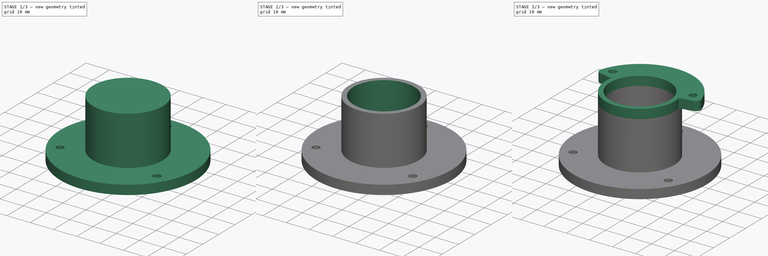
[diagram: build sequence overview — one tinted view per stage of 3, left to right]
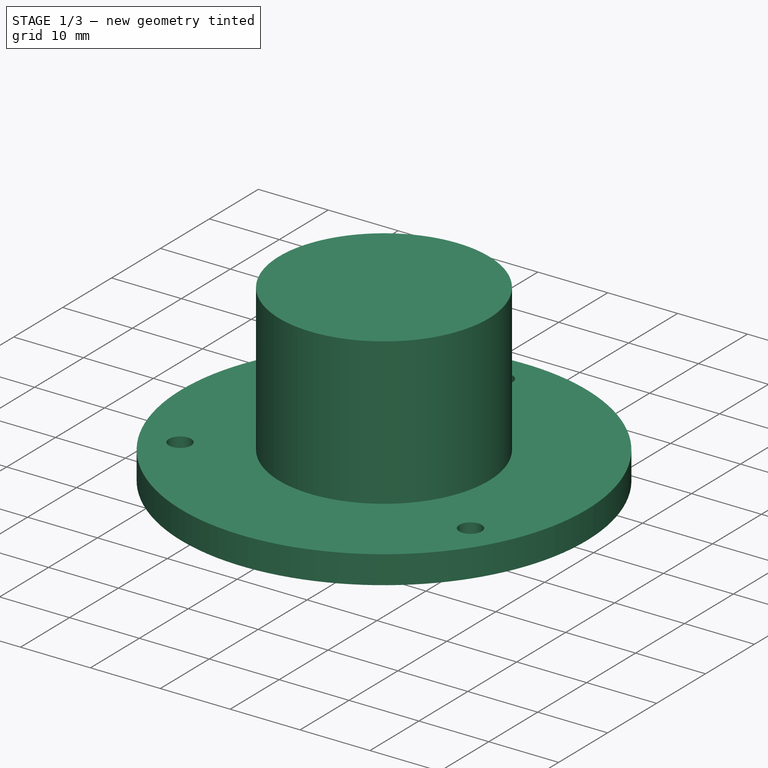
[diagram: stage 1 of 3 — iso view after this stage's code; geometry added in this stage tinted green]
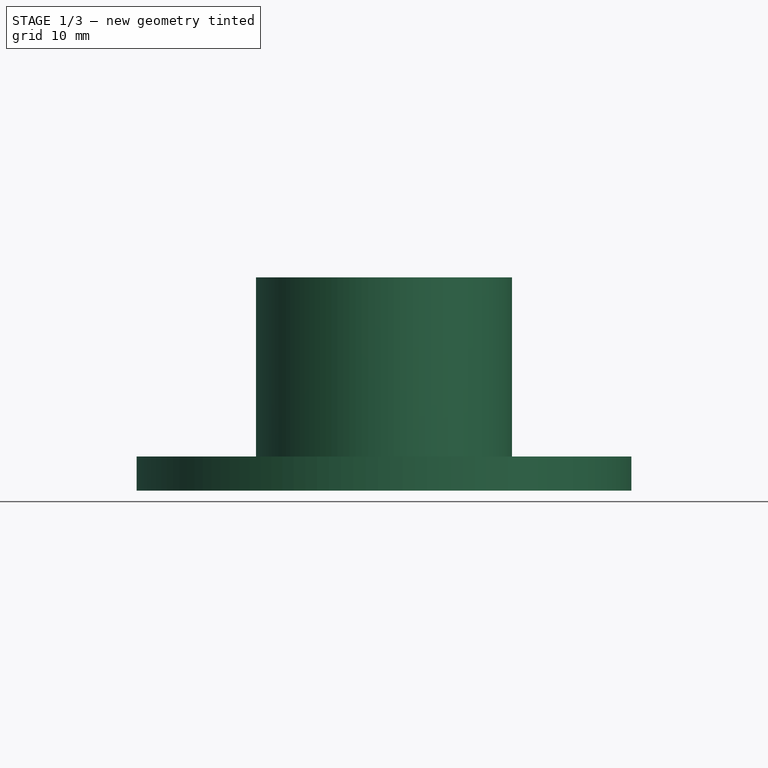
[diagram: stage 1 of 3 — front view after this stage's code; geometry added in this stage tinted green]
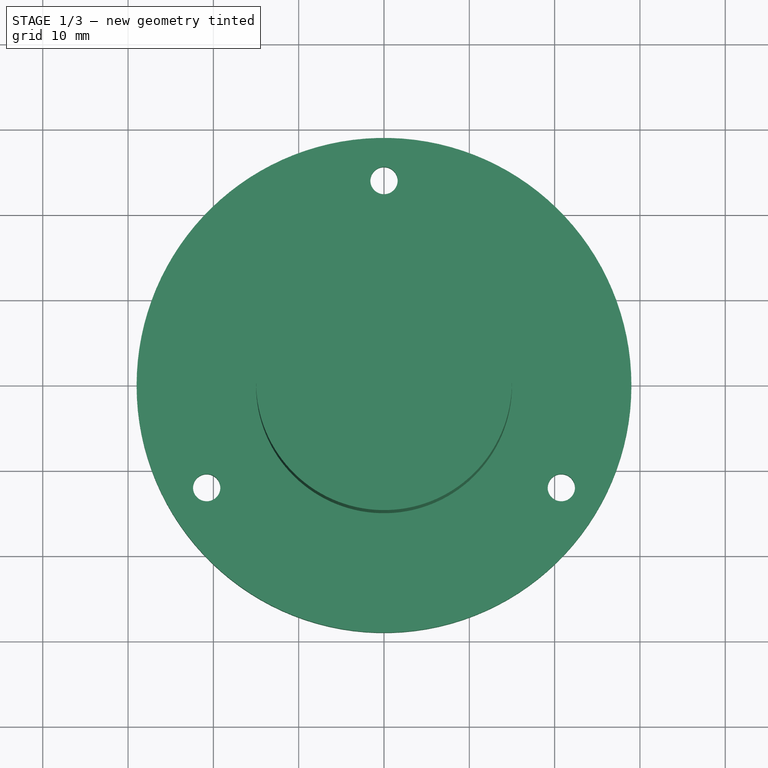
[diagram: stage 1 of 3 — top view after this stage's code; geometry added in this stage tinted green]
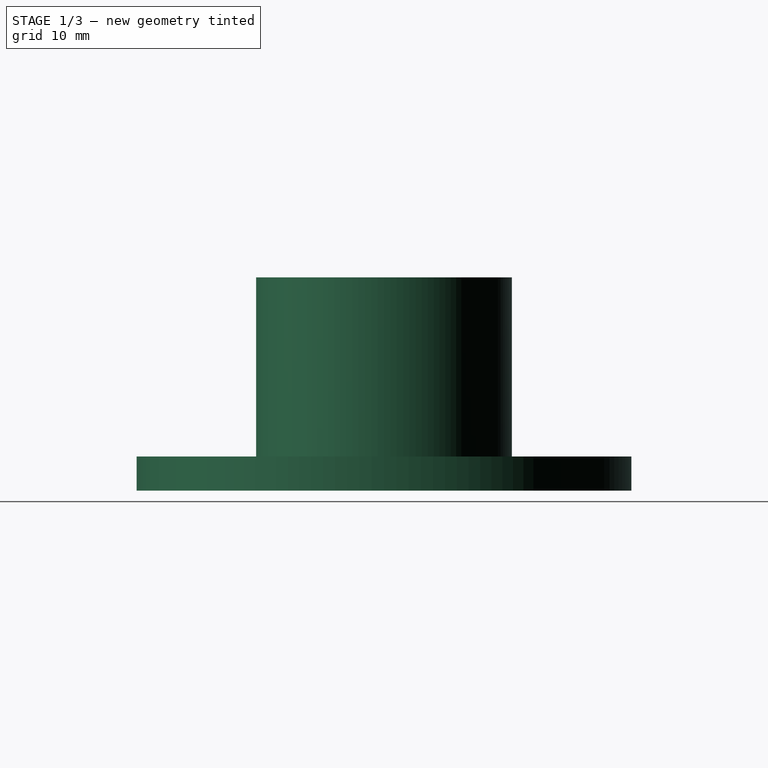
[diagram: stage 1 of 3 — right view after this stage's code; geometry added in this stage tinted green]
FCSTD DOCUMENT  (FreeCAD 0.18.3R)
Label: Body
License: All rights reserved
LicenseURL: http://en.wikipedia.org/wiki/All_rights_reserved
objects: Sketcher::SketchObject×4, PartDesign::Pad×3, PartDesign::Pocket×1, PartDesign::Fillet×1, PartDesign::Body×1
note: 14 computed .brp shape members not serialized (recipe doc carries the construction recipe); baked Part::Feature solids carry a one-line shape summary decoded from their .brp

FEATURE [Sketcher::SketchObject] Sketch
  MapMode = 5
  Support = -> [XY_Plane]
  sketch-geometry (7):
    g0: Circle CenterX=0 CenterY=0 CenterZ=0 NormalX=0 NormalY=0 NormalZ=1 AngleXU=0 Radius=29
    g1: Circle CenterX=1.5e-15 CenterY=24 CenterZ=0 NormalX=0 NormalY=0 NormalZ=1 AngleXU=0 Radius=1.6
    g2: Circle CenterX=20.7846 CenterY=-12 CenterZ=0 NormalX=0 NormalY=0 NormalZ=1 AngleXU=0 Radius=1.6
    g3: Circle CenterX=-20.7846 CenterY=-12 CenterZ=0 NormalX=0 NormalY=0 NormalZ=1 AngleXU=0 Radius=1.6
    g4: LineSegment [constr] StartX=-20.7846 StartY=-12 StartZ=0 EndX=0 EndY=0 EndZ=0
    g5: LineSegment [constr] StartX=1.5e-15 StartY=24 StartZ=0 EndX=0 EndY=0 EndZ=0
    g6: LineSegment [constr] StartX=20.7846 StartY=-12 StartZ=0 EndX=0 EndY=0 EndZ=0
  constraints (17):
    c: Coincident(g0,g-1)
    c: Coincident(g4,g3)
    c: Coincident(g4,g0)
    c: Coincident(g5,g1)
    c: Coincident(g5,g0)
    c: Coincident(g6,g2)
    c: Coincident(g6,g0)
    c: Radius(g2) = 1.6
    c: Radius(g1) = 1.6
    c: Radius(g3) = 1.6
    c: Distance(g6) = 24
    c: Distance(g5) = 24
    c: Distance(g4) = 24
    c: Angle(g-2,g5) = 0
    c: Angle(g-2,g4) = 2.0944
    c: Angle(g6,g-2) = 2.0944
    c: Radius(g0) = 29
FEATURE [PartDesign::Pad] Pad
  Length = 4
  Length2 = 100
  Profile = -> Sketch
  Type = 0
FEATURE [Sketcher::SketchObject] Sketch001
  MapMode = 5
  Placement = pos=(0,0,4) rot=(0,0,1;0rad)
  Support = -> [Pad]
  sketch-geometry (1):
    g0: Circle CenterX=0 CenterY=0 CenterZ=0 NormalX=0 NormalY=0 NormalZ=1 AngleXU=0 Radius=15
  constraints (2):
    c: Coincident(g0,g-1)
    c: Radius(g0) = 15
FEATURE [PartDesign::Pad] Pad001
  BaseFeature = -> Pad
  Length = 21
  Length2 = 100
  Profile = -> Sketch001
  Type = 0
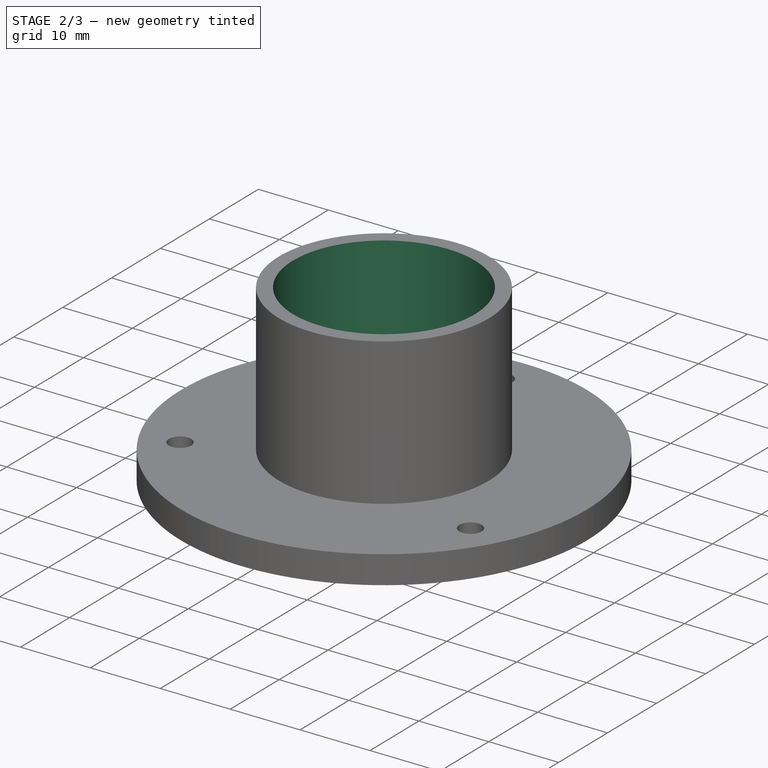
[diagram: stage 2 of 3 — iso view after this stage's code; geometry added in this stage tinted green]
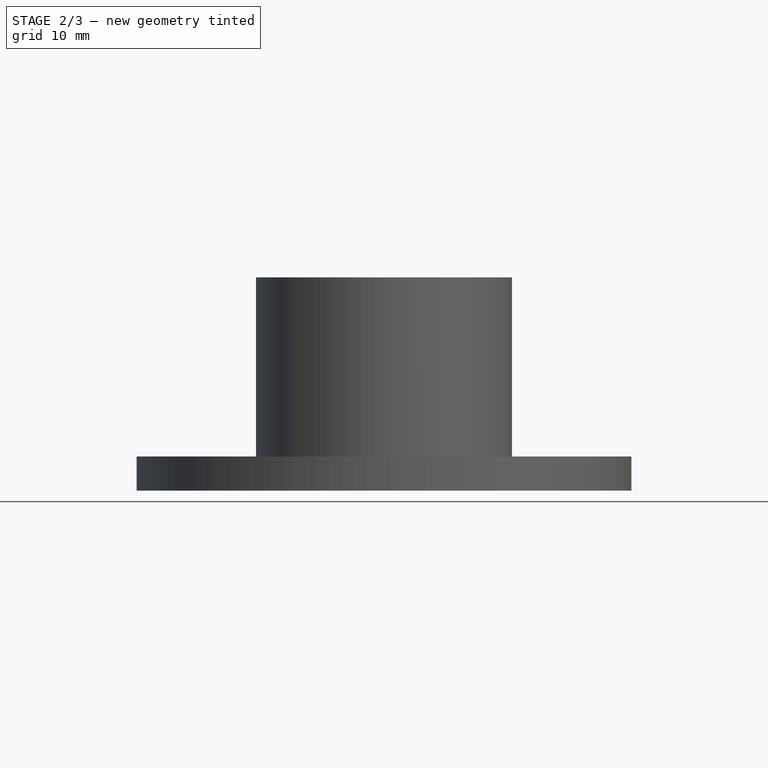
[diagram: stage 2 of 3 — front view after this stage's code; geometry added in this stage tinted green]
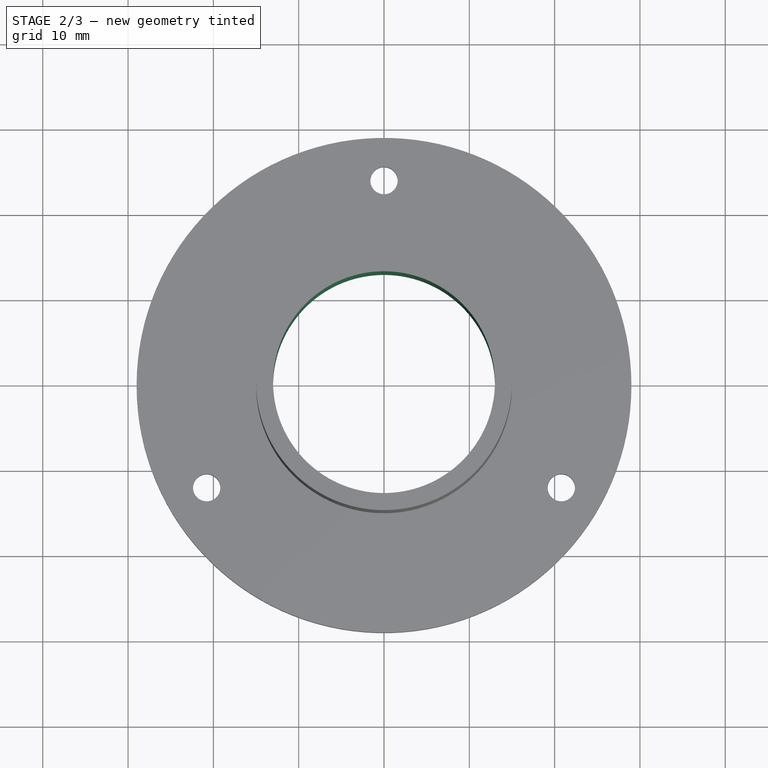
[diagram: stage 2 of 3 — top view after this stage's code; geometry added in this stage tinted green]
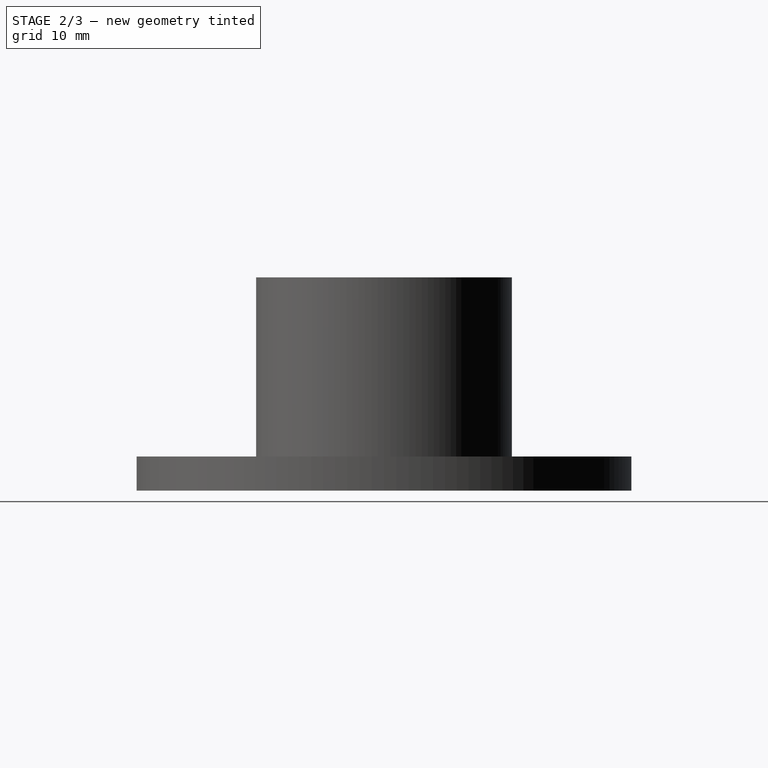
[diagram: stage 2 of 3 — right view after this stage's code; geometry added in this stage tinted green]
FEATURE [Sketcher::SketchObject] Sketch002
  MapMode = 5
  Placement = pos=(0,0,25) rot=(0,0,1;0rad)
  Support = -> [Pad001]
  sketch-geometry (1):
    g0: Circle CenterX=0 CenterY=0 CenterZ=0 NormalX=0 NormalY=0 NormalZ=1 AngleXU=0 Radius=13
  constraints (2):
    c: Coincident(g0,g-1)
    c: Radius(g0) = 13
FEATURE [PartDesign::Pocket] Pocket
  BaseFeature = -> Pad001
  Length = 40
  Length2 = 100
  Profile = -> Sketch002
  Type = 0
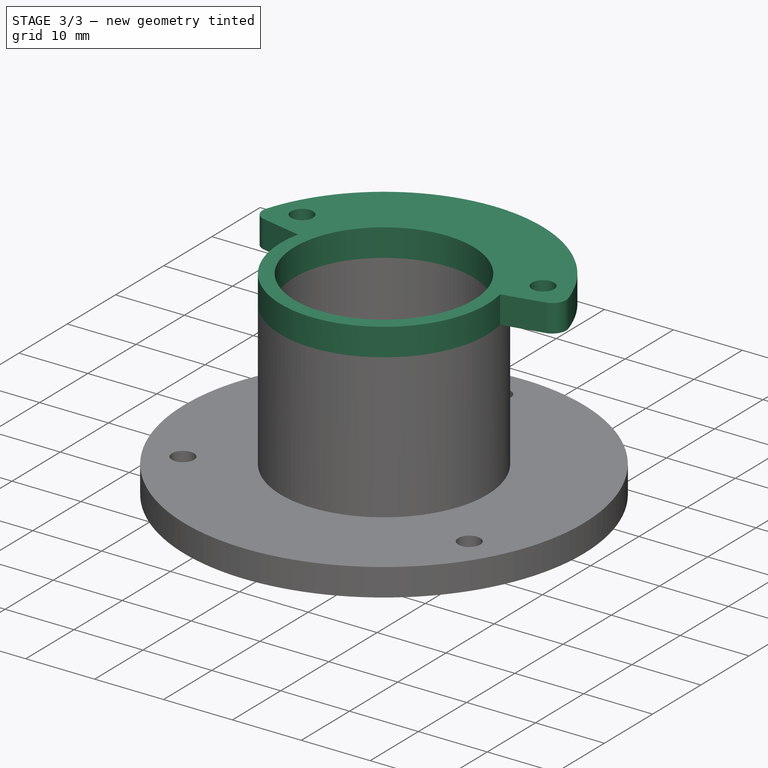
[diagram: stage 3 of 3 — iso view after this stage's code; geometry added in this stage tinted green]
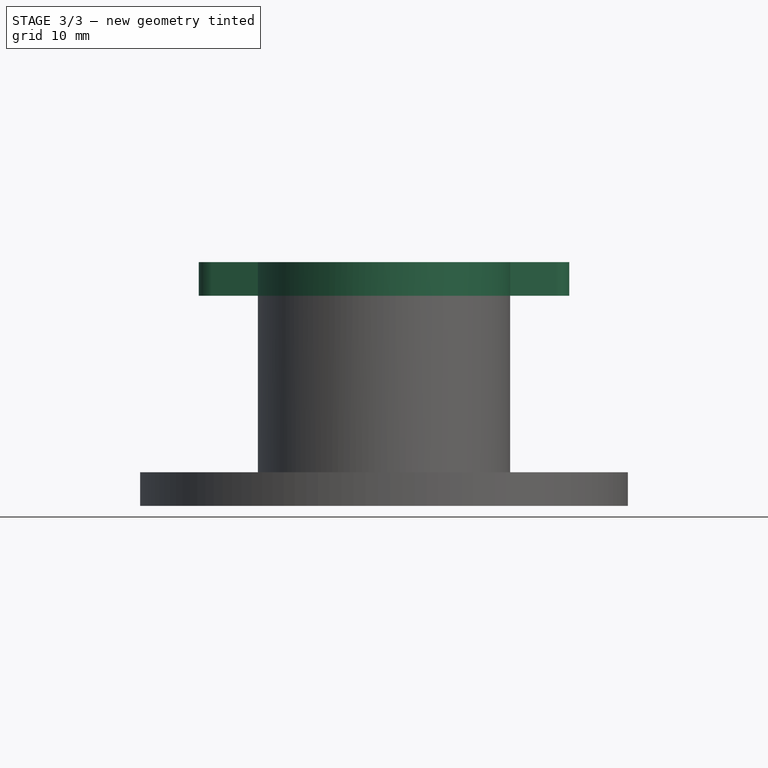
[diagram: stage 3 of 3 — front view after this stage's code; geometry added in this stage tinted green]
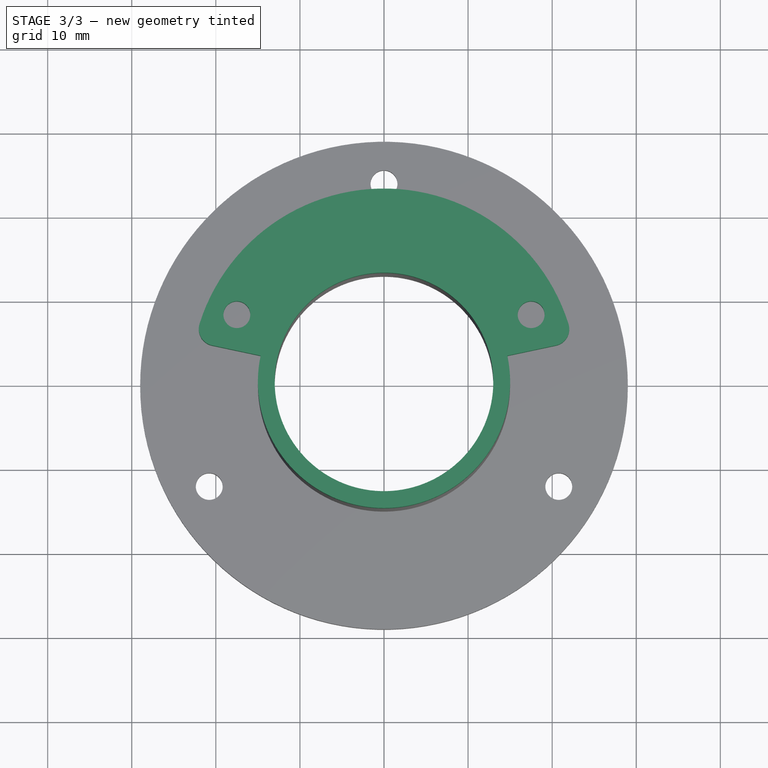
[diagram: stage 3 of 3 — top view after this stage's code; geometry added in this stage tinted green]
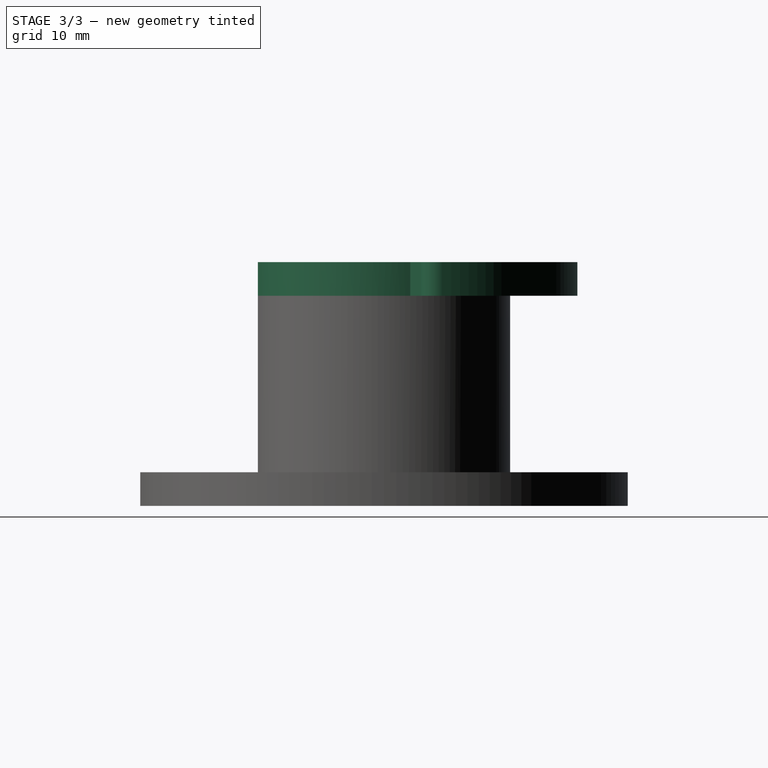
[diagram: stage 3 of 3 — right view after this stage's code; geometry added in this stage tinted green]
FEATURE [Sketcher::SketchObject] Sketch003
  ExternalGeometry = -> [Pocket]
  MapMode = 5
  Placement = pos=(0,0,25) rot=(0,0,1;0rad)
  Support = -> [Pocket]
  sketch-geometry (13):
    g0: Circle CenterX=0 CenterY=0 CenterZ=0 NormalX=0 NormalY=0 NormalZ=1 AngleXU=0 Radius=13
    g1: Circle [constr] CenterX=0 CenterY=0 CenterZ=0 NormalX=0 NormalY=0 NormalZ=1 AngleXU=0 Radius=4.90616
    g2: LineSegment [constr] StartX=0 StartY=0 StartZ=0 EndX=0 EndY=30.5253 EndZ=0
    g3: GeomPoint X=0 Y=8 Z=0
    g4: Circle [constr] CenterX=0 CenterY=8 CenterZ=0 NormalX=0 NormalY=0 NormalZ=1 AngleXU=0 Radius=14
    g5: Circle CenterX=-17.5 CenterY=8 CenterZ=0 NormalX=0 NormalY=0 NormalZ=1 AngleXU=0 Radius=1.6
    g6: Circle CenterX=17.5 CenterY=8 CenterZ=0 NormalX=0 NormalY=0 NormalZ=1 AngleXU=0 Radius=1.6
    g7: LineSegment [constr] StartX=0 StartY=0 StartZ=0 EndX=-14.6722 EndY=3.11868 EndZ=0
    g8: LineSegment [constr] StartX=0 StartY=0 StartZ=0 EndX=14.6722 EndY=3.11868 EndZ=0
    g9: ArcOfCircle CenterX=0 CenterY=0 CenterZ=0 NormalX=0 NormalY=0 NormalZ=1 AngleXU=0 Radius=15 StartAngle=2.93215 EndAngle=6.49262
    g10: LineSegment StartX=-14.6722 StartY=3.11868 StartZ=0 EndX=-22.4974 EndY=4.78197 EndZ=0
    g11: LineSegment StartX=14.6722 StartY=3.11868 StartZ=0 EndX=22.4974 EndY=4.78197 EndZ=0
    g12: ArcOfCircle CenterX=0 CenterY=0 CenterZ=0 NormalX=0 NormalY=0 NormalZ=1 AngleXU=0 Radius=23 StartAngle=0.20944 EndAngle=2.93215
  constraints (31):
    c: Coincident(g0,g-1)
    c: Equal(g0,g-3)
    c: Coincident(g1,g0)
    c: Vertical(g2)
    c: PointOnObject(g3,g2)
    c: Coincident(g0,g2)
    c: Distance(g3,g0) = 8
    c: Coincident(g4,g3)
    c: Radius(g4) = 14
    c: DistanceY(g3,g5) = 0
    c: DistanceY(g3,g6) = 0
    c: Distance(g3,g6) = 17.5
    c: Distance(g5,g3) = 17.5
    c: Radius(g5) = 1.6
    c: Radius(g6) = 1.6
    c: Coincident(g7,g0)
    c: PointOnObject(g7,g-4)
    c: Coincident(g8,g0)
    c: Angle(g-1,g7) = 2.93215
    c: Angle(g-1,g8) = 0.20944
    c: Coincident(g9,g0)
    c: Coincident(g9,g8)
    c: Coincident(g9,g7)
    c: Coincident(g10,g9)
    c: Coincident(g11,g9)
    c: Parallel(g10,g7)
    c: Parallel(g8,g11)
    c: Distance(g10) = 8
    c: Coincident(g12,g0)
    c: Coincident(g12,g10)
    c: Coincident(g12,g11)
FEATURE [PartDesign::Pad] Pad002
  BaseFeature = -> Pocket
  Length = 4
  Length2 = 100
  Profile = -> Sketch003
  Type = 0
FEATURE [PartDesign::Fillet] Fillet
  Base = -> Pad002 [Edge37,Edge36]
  BaseFeature = -> Pad002
  Radius = 2
FEATURE [PartDesign::Body] Body
  Group = -> [Sketch,Pad,Sketch001,Pad001,Sketch002,Pocket,Sketch003,Pad002,Fillet]
  Origin = -> Origin
  Tip = -> Fillet
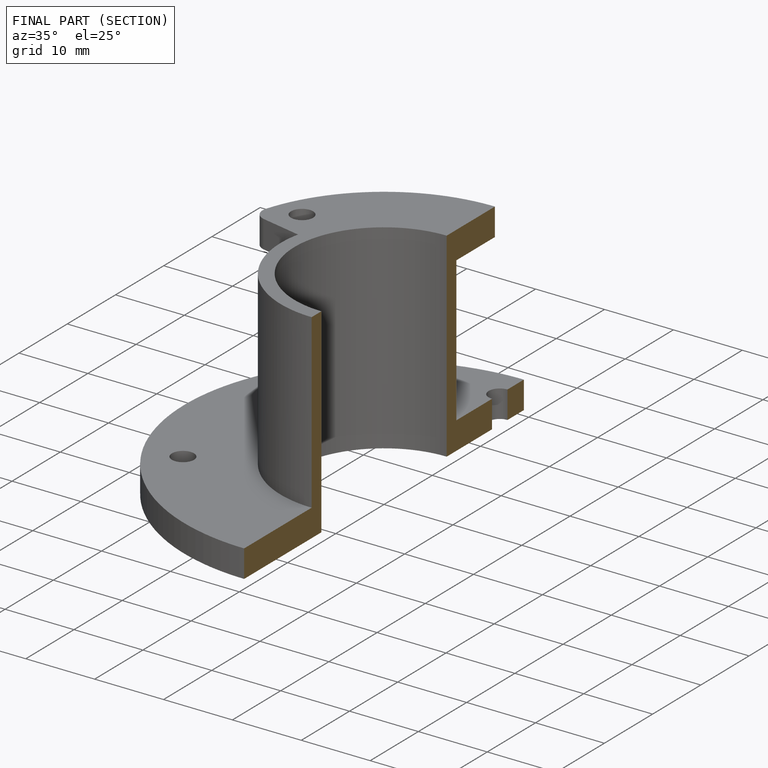
[diagram: finished part — half-section view (interior)]
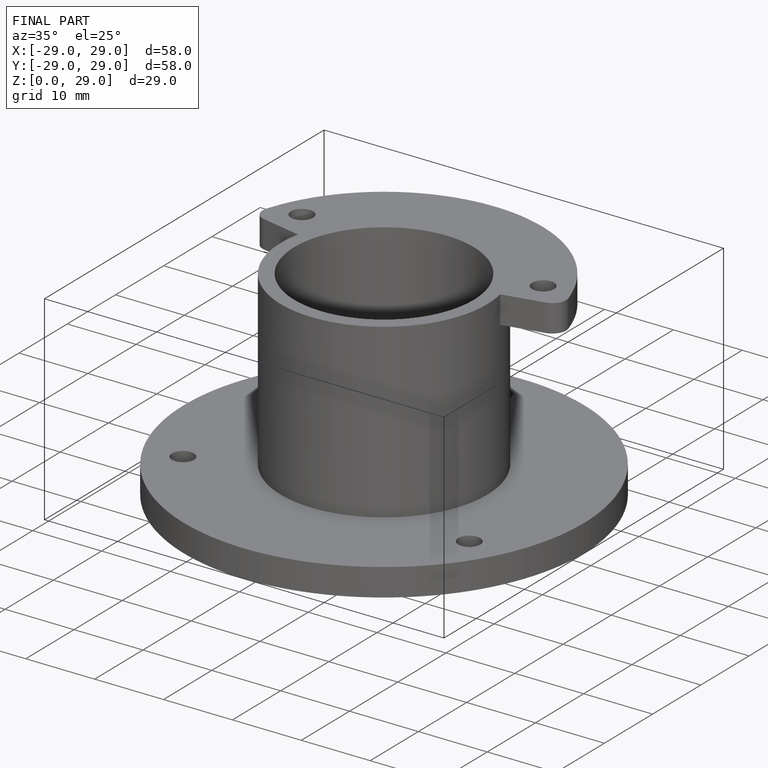
[diagram: finished part — iso view with bounding-box wireframe]
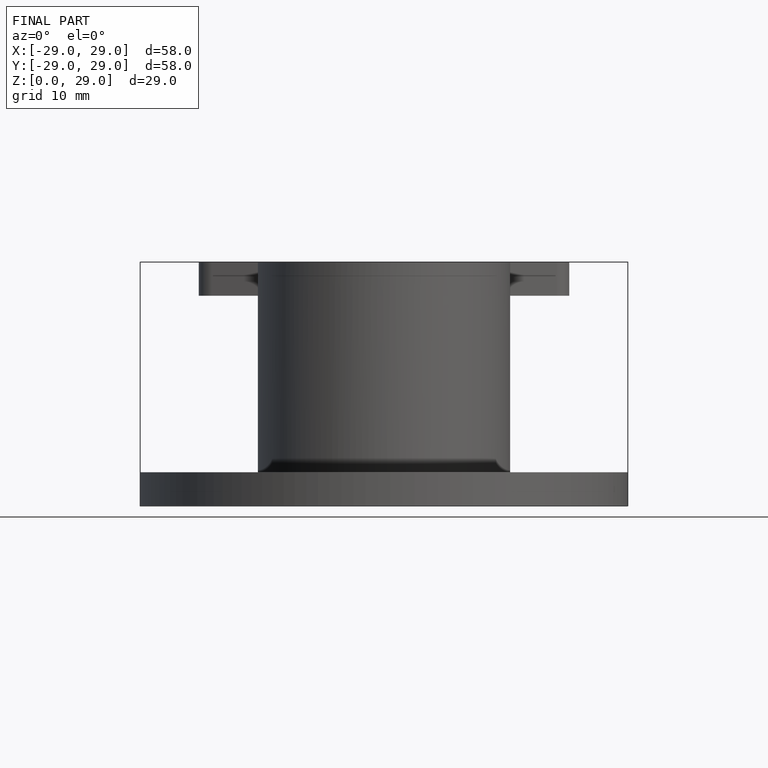
[diagram: finished part — front view with bounding-box wireframe]
